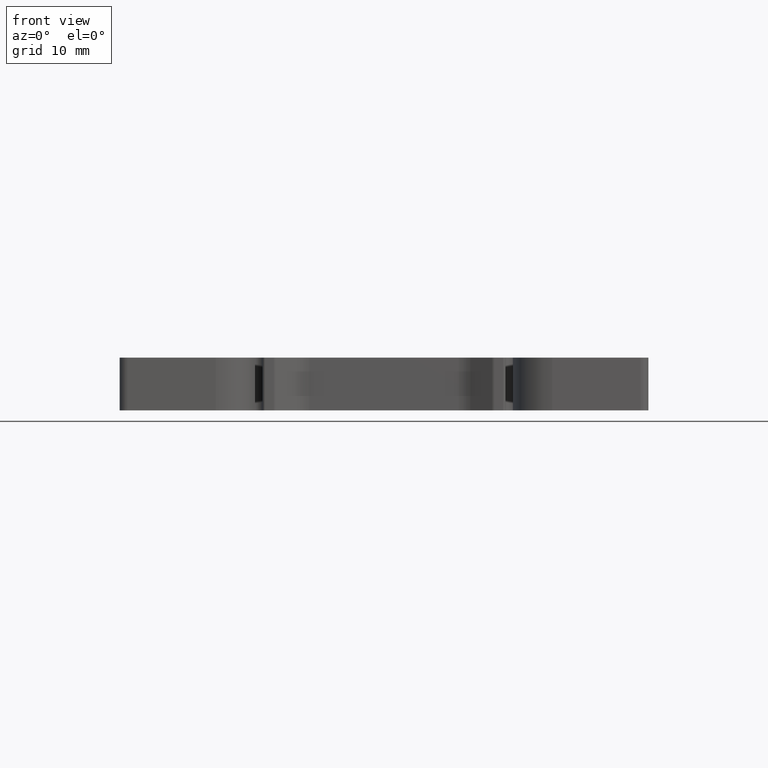
[diagram: clean part render]
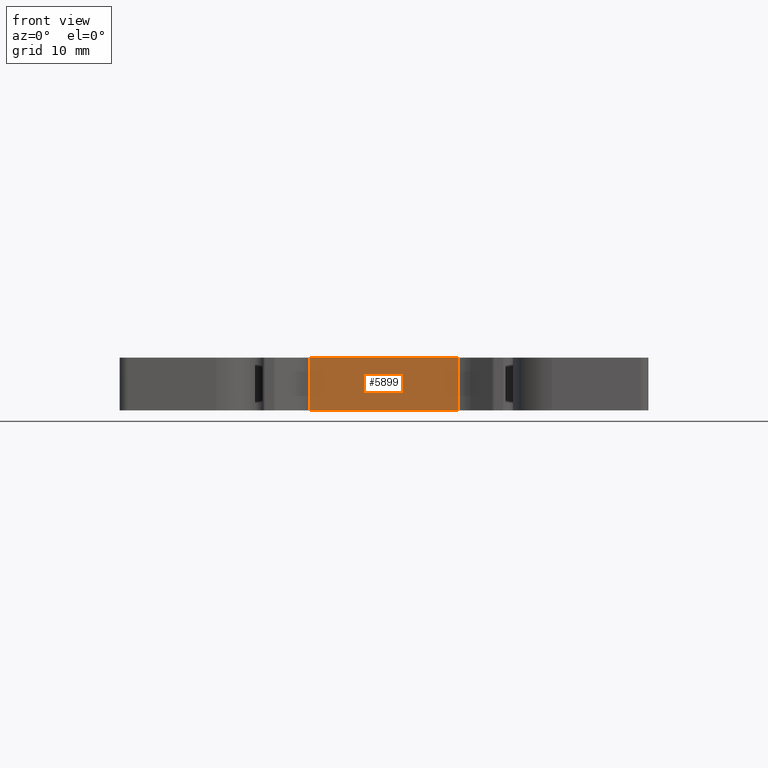
[diagram: same view with one face highlighted and labeled with its STEP entity id]
A machine part, front view. The second image highlights one B-rep face of the part: STEP entity #5899.
In plain terms, the highlighted planar face has unit normal (-0, 1, 0).
Its self-contained STEP definition (entity closure, byte-faithful):
#1561 = VERTEX_POINT ( 'NONE', #8158 ) ;
#1593 = VERTEX_POINT ( 'NONE', #12804 ) ;
#1601 = VERTEX_POINT ( 'NONE', #12787 ) ;
#1613 = VERTEX_POINT ( 'NONE', #12792 ) ;
#3750 = DIRECTION ( 'NONE',  ( -1.000000000000000000, -2.371131949572924900E-014, 0.0000000000000000000 ) ) ;
#3753 = PLANE ( 'NONE',  #11290 ) ;
#3755 = CARTESIAN_POINT ( 'NONE',  ( 9.350668630985151000, -23.95152363939114100, 5.883087449936323500 ) ) ;
#3762 = FACE_OUTER_BOUND ( 'NONE', #5130, .T. ) ;
#3765 = DIRECTION ( 'NONE',  ( -2.371131949572924900E-014, 1.000000000000000000, 0.0000000000000000000 ) ) ;
#4021 = EDGE_CURVE ( 'NONE', #1561, #1613, #12996, .T. ) ;
#4270 = EDGE_CURVE ( 'NONE', #1601, #1593, #7382, .T. ) ;
#4505 = EDGE_CURVE ( 'NONE', #1613, #1601, #7255, .T. ) ;
#4660 = EDGE_CURVE ( 'NONE', #1561, #1593, #8858, .T. ) ;
#5130 = EDGE_LOOP ( 'NONE', ( #12109, #12015, #12088, #12090 ) ) ;
#5899 = ADVANCED_FACE ( 'NONE', ( #3762 ), #3753, .F. ) ;
#7220 = CARTESIAN_POINT ( 'NONE',  ( 9.350668630985151000, -23.95152363939114100, 6.258087449936324400 ) ) ;
#7255 = LINE ( 'NONE', #7220, #9602 ) ;
#7257 = DIRECTION ( 'NONE',  ( 1.000000000000000000, 2.371131949572924900E-014, 0.0000000000000000000 ) ) ;
#7368 = CARTESIAN_POINT ( 'NONE',  ( 9.350668630985151000, -23.95152363939114100, 5.883087449936323500 ) ) ;
#7382 = LINE ( 'NONE', #7368, #10458 ) ;
#7405 = DIRECTION ( 'NONE',  ( -0.0000000000000000000, -0.0000000000000000000, -1.000000000000000000 ) ) ;
#8158 = CARTESIAN_POINT ( 'NONE',  ( -9.378327447449757800, -23.95152363939158500, -0.3419125500636775400 ) ) ;
#8821 = DIRECTION ( 'NONE',  ( 1.000000000000000000, 2.371131949572924900E-014, 0.0000000000000000000 ) ) ;
#8829 = CARTESIAN_POINT ( 'NONE',  ( 9.350668630985151000, -23.95152363939114100, -0.3419125500636775400 ) ) ;
#8858 = LINE ( 'NONE', #8829, #9783 ) ;
#9131 = VECTOR ( 'NONE', #13002, 1000.000000000000000 ) ;
#9602 = VECTOR ( 'NONE', #7257, 1000.000000000000000 ) ;
#9783 = VECTOR ( 'NONE', #8821, 1000.000000000000000 ) ;
#10458 = VECTOR ( 'NONE', #7405, 1000.000000000000000 ) ;
#11290 = AXIS2_PLACEMENT_3D ( 'NONE', #3755, #3765, #3750 ) ;
#12015 = ORIENTED_EDGE ( 'NONE', *, *, #4505, .F. ) ;
#12088 = ORIENTED_EDGE ( 'NONE', *, *, #4021, .F. ) ;
#12090 = ORIENTED_EDGE ( 'NONE', *, *, #4660, .T. ) ;
#12109 = ORIENTED_EDGE ( 'NONE', *, *, #4270, .F. ) ;
#12787 = CARTESIAN_POINT ( 'NONE',  ( 9.350668630985151000, -23.95152363939114100, 6.258087449936324400 ) ) ;
#12792 = CARTESIAN_POINT ( 'NONE',  ( -9.378327447449757800, -23.95152363939158500, 6.258087449936324400 ) ) ;
#12804 = CARTESIAN_POINT ( 'NONE',  ( 9.350668630985151000, -23.95152363939114100, -0.3419125500636775400 ) ) ;
#12981 = CARTESIAN_POINT ( 'NONE',  ( -9.378327447449757800, -23.95152363939158500, 5.883087449936323500 ) ) ;
#12996 = LINE ( 'NONE', #12981, #9131 ) ;
#13002 = DIRECTION ( 'NONE',  ( 0.0000000000000000000, 0.0000000000000000000, 1.000000000000000000 ) ) ;